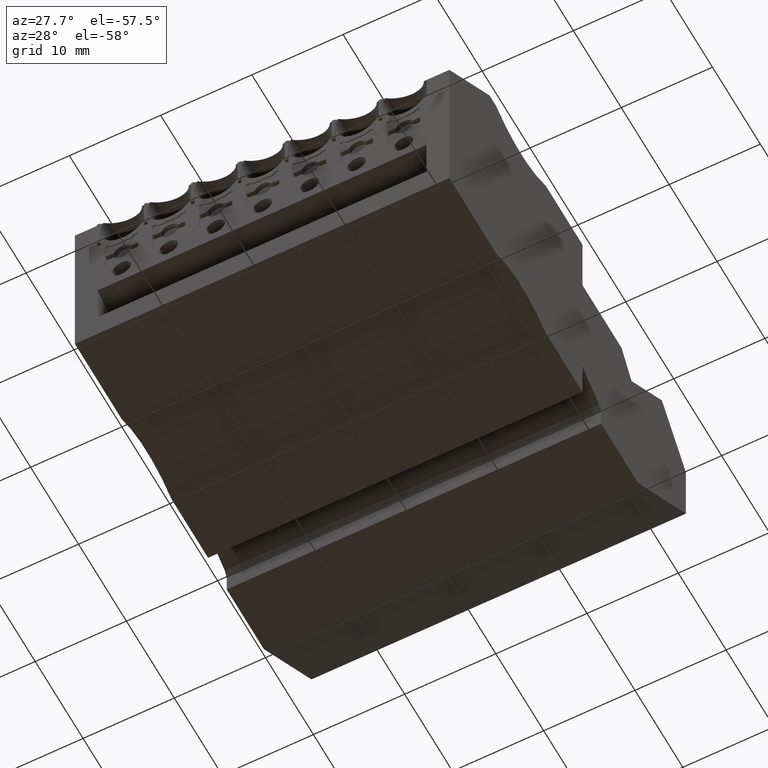
[diagram: clean part render]
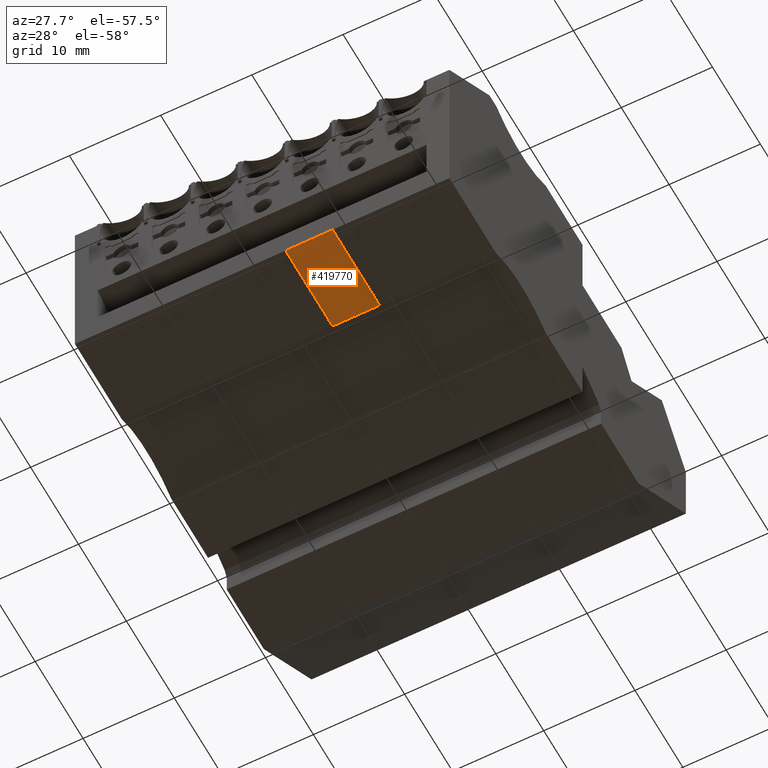
[diagram: same view with one face highlighted and labeled with its STEP entity id]
A machine part, auxiliary view. The second image highlights one B-rep face of the part: STEP entity #419770.
In plain terms, the highlighted planar face has unit normal (0, 0, -1).
Its self-contained STEP definition (entity closure, byte-faithful):
#9350=CARTESIAN_POINT('',(432.124069232021,670.934347625639,
68.1199999950703));
#9360=DIRECTION('',(-1.20456572490157E-9,-1.,5.82229711732946E-10));
#9370=DIRECTION('',(1.,-1.20456572494379E-9,-7.2511997674725E-11));
#9380=AXIS2_PLACEMENT_3D('',#9350,#9360,#9370);
#9390=PLANE('',#9380);
#9400=CARTESIAN_POINT('',(420.453158743445,670.93434764981,
88.7199999942416));
#9410=DIRECTION('',(1.11377720129513E-10,5.56333266435468E-10,1.));
#9420=VECTOR('',#9410,1.);
#9430=LINE('',#9400,#9420);
#9580=CARTESIAN_POINT('',(430.260883772267,670.934347639395,
93.8699999926897));
#9590=DIRECTION('',(1.66699210889915E-10,4.90742846146349E-10,1.));
#9600=VECTOR('',#9590,1.);
#9610=LINE('',#9580,#9600);
#13210=CARTESIAN_POINT('',(420.453158746751,670.934347651691,
88.7200000003878));
#13220=VERTEX_POINT('',#13210);
#13250=CARTESIAN_POINT('',(435.96890253283,670.934347633001,
88.7199999991585));
#13260=DIRECTION('',(-1.,1.20456572494379E-9,7.92260575924475E-11));
#13270=VECTOR('',#13260,1.);
#13280=LINE('',#13250,#13270);
#13290=CARTESIAN_POINT('',(430.260883743991,670.934347639877,
88.7199999996107));
#13300=VERTEX_POINT('',#13290);
#13310=EDGE_CURVE('',#13300,#13220,#13280,.T.);
#273980=CARTESIAN_POINT('',(430.26088375722,670.934347667822,
93.8700000007555));
#273990=VERTEX_POINT('',#273980);
#357590=CARTESIAN_POINT('',(420.453158747159,670.934347654689,
93.8700000002705));
#357600=VERTEX_POINT('',#357590);
#357610=EDGE_CURVE('',#13220,#357600,#9430,.T.);
#377910=EDGE_CURVE('',#13300,#273990,#9610,.T.);
#413250=CARTESIAN_POINT('',(435.968902532099,670.934347636,
93.8699999990413));
#413260=DIRECTION('',(1.,-1.20456572494379E-9,-7.92260575924475E-11));
#413270=VECTOR('',#413260,1.);
#413280=LINE('',#413250,#413270);
#413290=EDGE_CURVE('',#357600,#273990,#413280,.T.);
#419710=ORIENTED_EDGE('',*,*,#357610,.F.);
#419720=ORIENTED_EDGE('',*,*,#413290,.F.);
#419730=ORIENTED_EDGE('',*,*,#377910,.T.);
#419740=ORIENTED_EDGE('',*,*,#13310,.F.);
#419750=EDGE_LOOP('',(#419740,#419730,#419720,#419710));
#419760=FACE_OUTER_BOUND('',#419750,.T.);
#419770=ADVANCED_FACE('',(#419760),#9390,.T.);